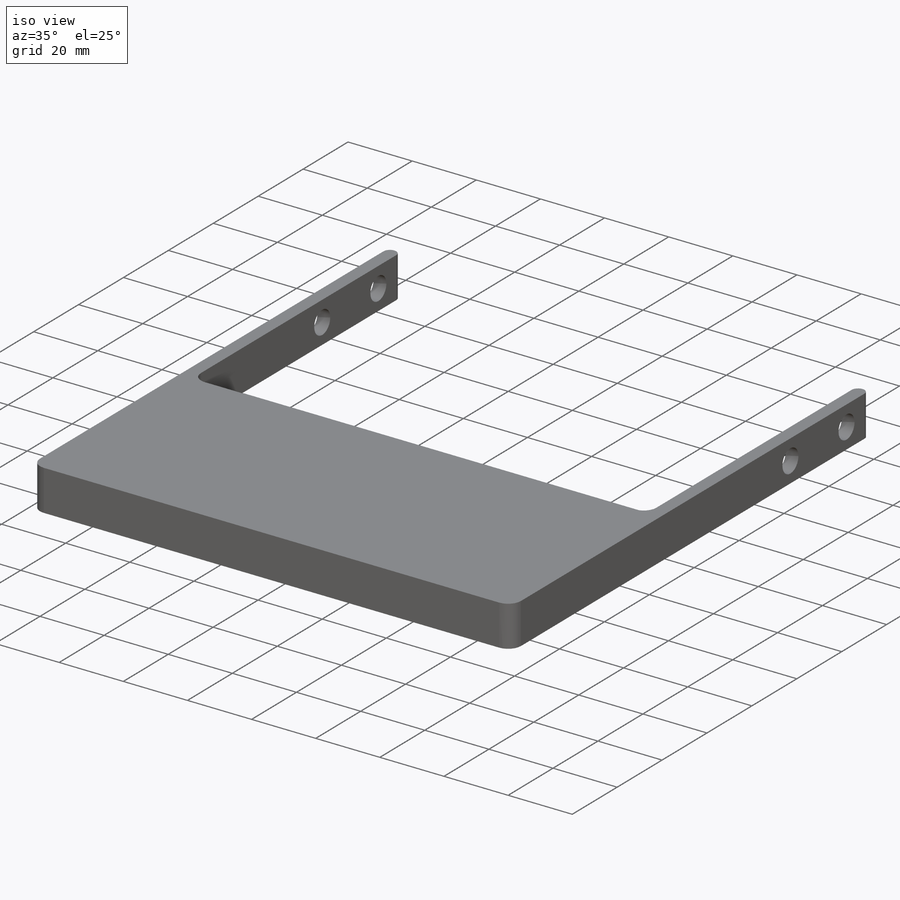
[diagram: iso view]
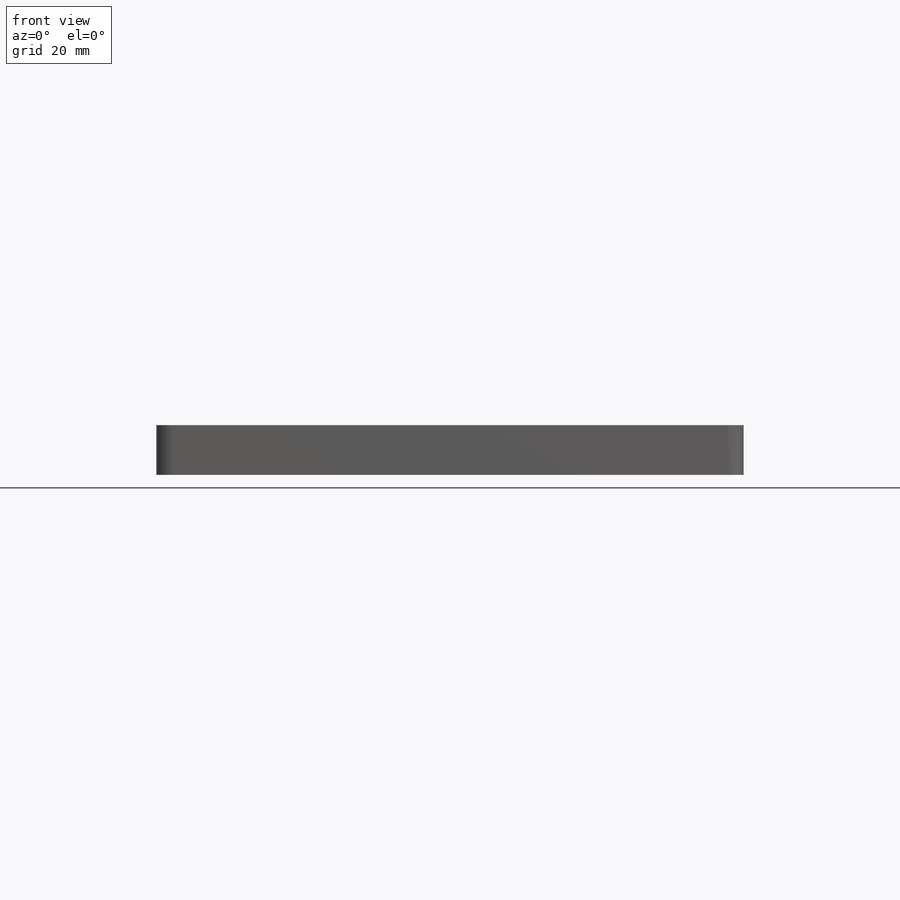
[diagram: front view]
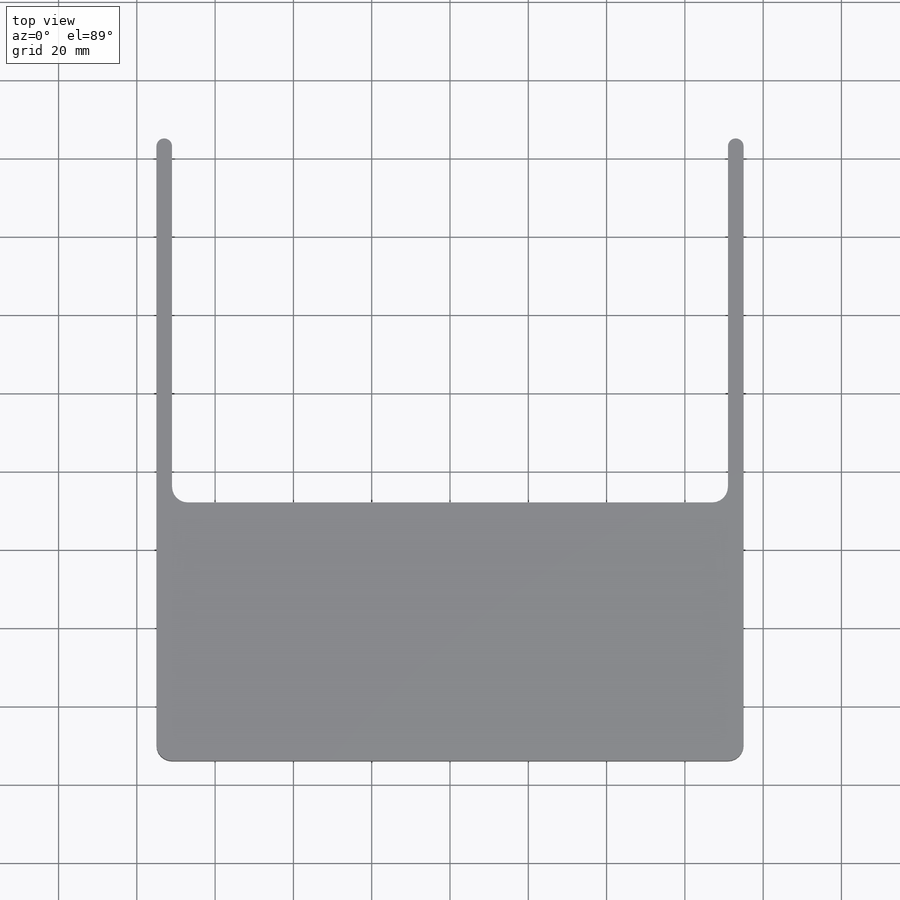
[diagram: top view]
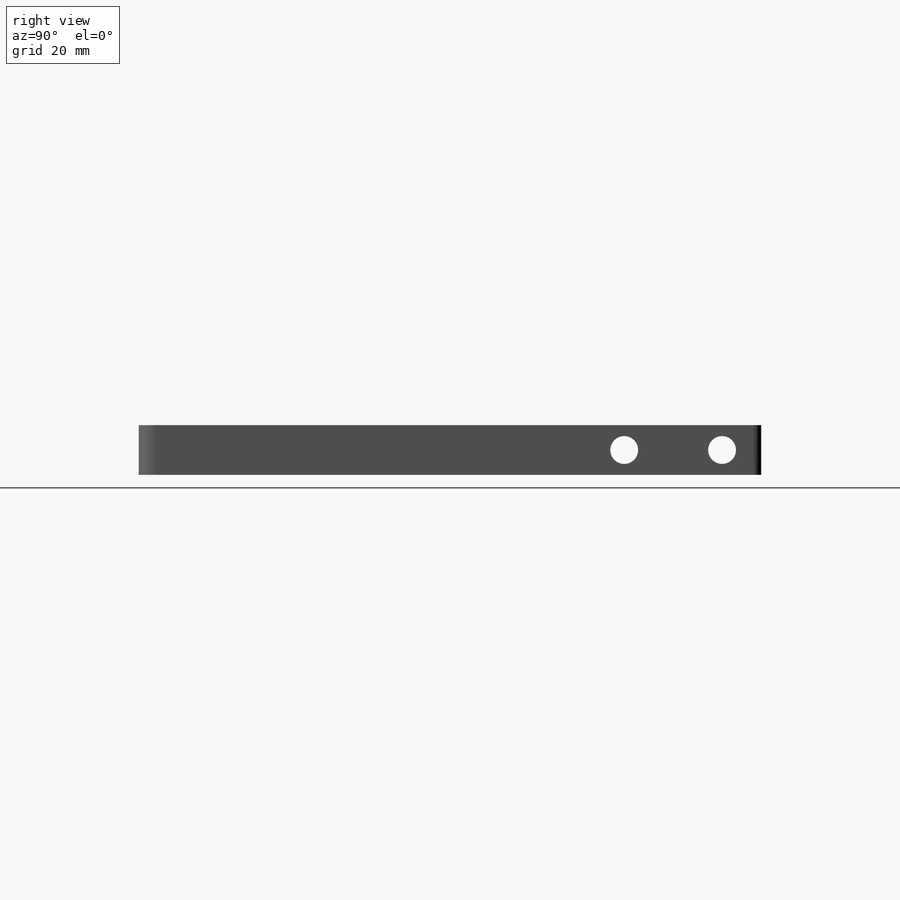
[diagram: right view]
SOLIDWORKS PART (.sldprt)
format: sldprt  version: not decoded by parser v0  size: 243,200 bytes
history: native  units: mm
features: sketch x4, fillet x2, material x1, extrude x1, hole x1 (+11 scaffold rows collapsed)
feature tree (20):
  scaffold x11  (default folders/planes/origin — collapsed)
  material  "Cast Carbon Steel"
  sketch  "Sketch1"  dims[c1.D1=92.5mm c1.D2=150.0mm c1.D3=127.0mm c2.D1=92.5mm c2.D3=10.0mm c2.D4=20.0mm c2.D5=127.0mm c2.D2=150.0mm c2.D6=13.0mm c2.D7=48.0mm c3.D1=92.5mm c3.D2=4.0mm c3.D3=159.0mm c3.D4=114.0mm c3.D5=55.0mm c3.D6=52.0mm c4.D3=142.0mm c4.D5=146.5mm c4.D4=35.0mm c5.D5=128.0mm c5.D6=194.0mm]
  extrude  "Extrude1"  Depth=12.7mm
  fillet  "Fillet2"  Radius=4mm
  fillet  "Fillet3"  Radius=2mm
  sketch  "Sketch4"  dims[c1.D1=15.0mm c1.D2=25.0mm c2.D1=45.0mm]
  hole  "1/4 Clearance Hole2"  Diameter=7.14248mm Depth=150mm
  sketch  "3DSketch2"
  sketch  "Sketch5"  dims[hole-wizard template sketch: 60 standard entries collapsed; hole parameters kept: c18.Thru Hole Depth=150.0mm]
decode coverage: 7 of 8 modeling features carry decoded parameters
note: ~ marks probable driven/reference dimensions
note: suppression state not decoded; provenance and decode notes live in map.json
